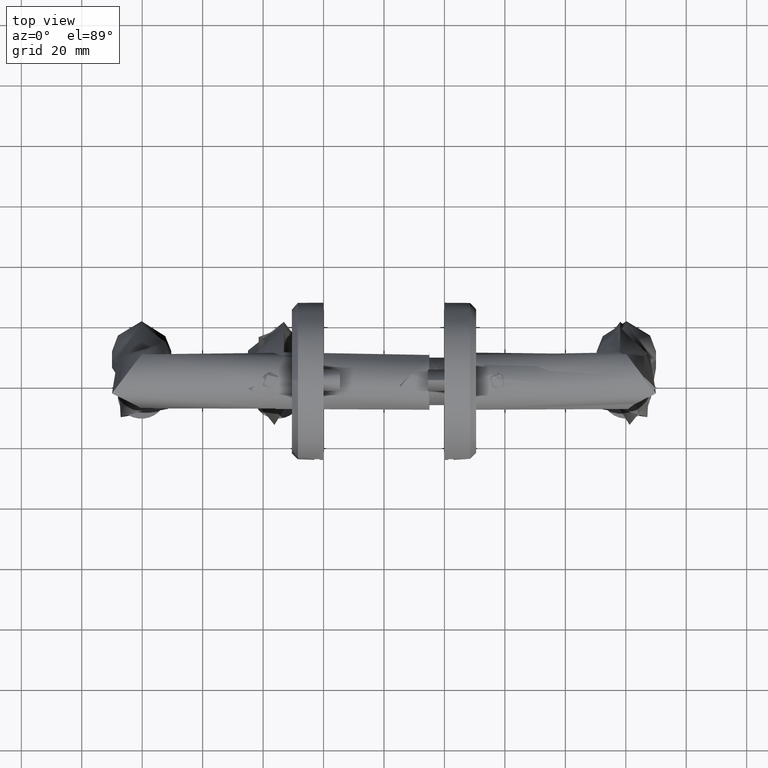
[diagram: clean part render]
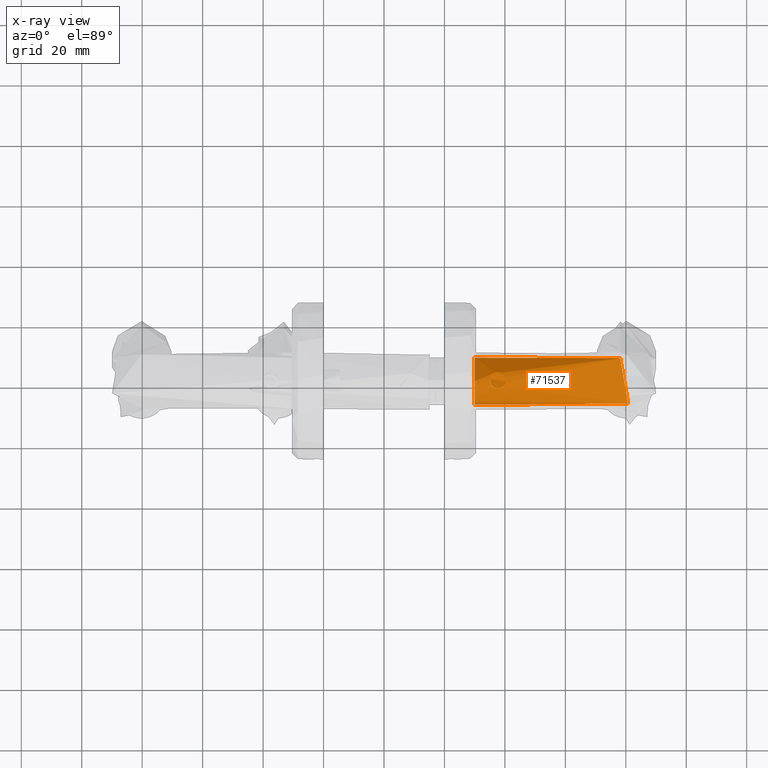
[diagram: x-ray — body ghosted, one internal face saturated and labeled with its STEP entity id]
A machine part, top view, then the same camera in x-ray: the body is ghosted and one INTERNAL B-rep face — a face not visible from any outside direction — is saturated and labeled: STEP entity #71537.
In plain terms, the highlighted cylindrical surface (bore or boss wall) has radius 7.85 mm, axis along (-1, 0, -0).
Its self-contained STEP definition (entity closure, byte-faithful):
#995 = CARTESIAN_POINT ( 'NONE',  ( -2.307024643649342500, -2.340474377015086600, -23.37873755498239700 ) ) ;
#1083 = CARTESIAN_POINT ( 'NONE',  ( -2.149607162047686900, -1.770863742671396700, -20.71658291316593300 ) ) ;
#1371 = CARTESIAN_POINT ( 'NONE',  ( -2.321304291942004800, -2.386190345381828100, -23.25697531553322200 ) ) ;
#1888 = CARTESIAN_POINT ( 'NONE',  ( -1.959279450051564500, -0.4242176323368022100, -19.91353104625180800 ) ) ;
#3172 = CARTESIAN_POINT ( 'NONE',  ( -4.054577594915955700, 5.369975993113575500, -67.82877106479482200 ) ) ;
#3452 = VERTEX_POINT ( 'NONE', #995 ) ;
#3456 = CARTESIAN_POINT ( 'NONE',  ( -8.051974791196228100, 7.652901924720223000, -63.13283780220610500 ) ) ;
#3600 = CARTESIAN_POINT ( 'NONE',  ( -1.978498366480178700, -0.6778704373157212700, -25.43125175009949500 ) ) ;
#3751 = B_SPLINE_CURVE_WITH_KNOTS ( 'NONE', 3,
 ( #52883, #6208, #67275, #80149, #26811, #45860, #25946, #73721, #86040, #72849 ),
 .UNSPECIFIED., .F., .F.,
 ( 4, 3, 3, 4 ),
 ( 4.298694126700149400E-018, 0.0002883903250794762200, 0.0006074796279142949600, 0.0009271153556158361000 ),
 .UNSPECIFIED. ) ;
#3888 = CARTESIAN_POINT ( 'NONE',  ( -1.962736948544393700, -0.4469987224957556700, -25.43616963782528700 ) ) ;
#4233 = CARTESIAN_POINT ( 'NONE',  ( -2.445878965259163300, 2.746084912034943800, -21.19067958916353700 ) ) ;
#4289 = CARTESIAN_POINT ( 'NONE',  ( -2.028692093551352400, -1.152753771912649700, -72.67351212180314200 ) ) ;
#5196 = CARTESIAN_POINT ( 'NONE',  ( -2.174620931154056500, 1.869499335052221500, -24.89816714254587300 ) ) ;
#5458 = CARTESIAN_POINT ( 'NONE',  ( -17.28740736464820300, 2.376388629234210000, -57.46060676343756100 ) ) ;
#5749 = CARTESIAN_POINT ( 'NONE',  ( -17.29109227783710500, -2.359211543666731800, -59.55787493235945400 ) ) ;
#5993 = CARTESIAN_POINT ( 'NONE',  ( -9.799999999999998900, 1.088018564132767900E-015, -15.00000000000000200 ) ) ;
#6031 = CARTESIAN_POINT ( 'NONE',  ( -2.011010811680395100, 1.018088216370678600, -25.24657244555189100 ) ) ;
#6119 = VERTEX_POINT ( 'NONE', #30591 ) ;
#6208 = CARTESIAN_POINT ( 'NONE',  ( -2.125554932997614900, 1.653546932047343900, -20.56803321826935600 ) ) ;
#6318 = CARTESIAN_POINT ( 'NONE',  ( -16.71752892145722300, 3.722330303954322100, -57.34769458327488000 ) ) ;
#6361 = CARTESIAN_POINT ( 'NONE',  ( -2.354999903756624000, 2.490492503048296100, -24.19214027286050900 ) ) ;
#6507 = CARTESIAN_POINT ( 'NONE',  ( -1.999093418396612000, 0.8942903928901343400, -20.15735863178214500 ) ) ;
#6608 = CARTESIAN_POINT ( 'NONE',  ( -11.07987061207231600, 7.758059940540145600, -60.37997186311719800 ) ) ;
#6897 = CARTESIAN_POINT ( 'NONE',  ( -14.19353157341334200, -6.559126842561303400, -64.12762868761340900 ) ) ;
#8291 = CARTESIAN_POINT ( 'NONE',  ( -1.988041213059579700, -0.7938257070122466400, -20.01138422667552100 ) ) ;
#8316 = CARTESIAN_POINT ( 'NONE',  ( -1.950000000000000400, 2.164934898019750900E-016, -15.00000000000000200 ) ) ;
#8711 = ORIENTED_EDGE ( 'NONE', *, *, #86889, .F. ) ;
#9331 = CARTESIAN_POINT ( 'NONE',  ( -12.70608980898639700, -7.292265904511809000, -65.77151898276604000 ) ) ;
#9462 = CARTESIAN_POINT ( 'NONE',  ( -1.955507084582395900, 0.3432556164179788600, -19.97474241054467100 ) ) ;
#9606 = CARTESIAN_POINT ( 'NONE',  ( -6.371596619884625700, -7.083029650756151900, -71.38062267511657000 ) ) ;
#9728 = CARTESIAN_POINT ( 'NONE',  ( -2.108630845001346900, -1.570140272583852500, -20.55457985915372300 ) ) ;
#10327 = CARTESIAN_POINT ( 'NONE',  ( -1.969326578229523300, -0.5625352118698122600, -25.44074583556041000 ) ) ;
#10971 = CARTESIAN_POINT ( 'NONE',  ( -2.488138908093577000, 2.857534168397520600, -21.48800780793981600 ) ) ;
#11030 = CARTESIAN_POINT ( 'NONE',  ( -1.947285414636475800, -0.2185626110291322700, -72.32389724989296600 ) ) ;
#11375 = B_SPLINE_CURVE_WITH_KNOTS ( 'NONE', 3,
 ( #33155, #46597, #6361, #18438, #25218, #45424, #5196, #58917, #25511, #72419 ),
 .UNSPECIFIED., .F., .F.,
 ( 4, 2, 2, 2, 4 ),
 ( 0.0000000000000000000, 0.0004851801130440871500, 0.0009703602260881743000, 0.001455540339132261500, 0.001940720452176348600 ),
 .UNSPECIFIED. ) ;
#11778 = B_SPLINE_CURVE_WITH_KNOTS ( 'NONE', 3,
 ( #39735, #18582, #79874, #6507, #45566, #73460 ),
 .UNSPECIFIED., .F., .F.,
 ( 4, 2, 4 ),
 ( 0.006179704355188942800, 0.006763281466161192400, 0.007346858577133443000 ),
 .UNSPECIFIED. ) ;
#12507 = CARTESIAN_POINT ( 'NONE',  ( -16.95825632573973300, -3.257119056501347000, -60.24384585673708200 ) ) ;
#13094 = CARTESIAN_POINT ( 'NONE',  ( -10.18369439822020600, 7.853555973788853200, -61.12953887184468000 ) ) ;
#13386 = CARTESIAN_POINT ( 'NONE',  ( -14.49088595417278600, 6.300253701403176100, -58.08642521920734900 ) ) ;
#13977 = CARTESIAN_POINT ( 'NONE',  ( -2.306888431597810200, -2.341161384303368300, -21.58542988058546500 ) ) ;
#14573 = CARTESIAN_POINT ( 'NONE',  ( -2.358356751808875300, -2.498937225907504000, -22.34981738358917600 ) ) ;
#14933 = ORIENTED_EDGE ( 'NONE', *, *, #45873, .F. ) ;
#15281 = CARTESIAN_POINT ( 'NONE',  ( -1.967245087653727500, 0.5200485390821417700, -20.05468825770648100 ) ) ;
#15544 = CARTESIAN_POINT ( 'NONE',  ( -10.39775515456358500, -7.842454226834290100, -68.08038582749826200 ) ) ;
#16207 = VERTEX_POINT ( 'NONE', #8316 ) ;
#16256 = CARTESIAN_POINT ( 'NONE',  ( -1.951012365854188900, -0.2286052664412851500, -19.89505033274851400 ) ) ;
#16699 = CARTESIAN_POINT ( 'NONE',  ( -5.117568196120877200, 6.304961474959530900, -66.42446869558726500 ) ) ;
#16836 = CARTESIAN_POINT ( 'NONE',  ( -1.962736948544393700, -0.4469987224957556700, -25.43616963782528700 ) ) ;
#17537 = CARTESIAN_POINT ( 'NONE',  ( -2.692720341788598300, -3.349525111023292200, -73.05829418933827000 ) ) ;
#17820 = CARTESIAN_POINT ( 'NONE',  ( -6.294654244171115700, 7.039065314606703300, -65.01094759224552900 ) ) ;
#18054 = ORIENTED_EDGE ( 'NONE', *, *, #56367, .T. ) ;
#18270 = ORIENTED_EDGE ( 'NONE', *, *, #71991, .T. ) ;
#18438 = CARTESIAN_POINT ( 'NONE',  ( -2.299925394133717200, 2.319366346061647800, -24.45741978179973200 ) ) ;
#18582 = CARTESIAN_POINT ( 'NONE',  ( -2.076408947706027700, 1.411414298042797900, -20.42760117646883700 ) ) ;
#18674 = CARTESIAN_POINT ( 'NONE',  ( -12.70608980898639700, -7.292265904511809000, -65.77151898276604000 ) ) ;
#18856 = FACE_BOUND ( 'NONE', #21421, .T. ) ;
#18980 = CARTESIAN_POINT ( 'NONE',  ( -16.08477808708689200, 4.712423354798306500, -57.44338928315214300 ) ) ;
#18999 = VERTEX_POINT ( 'NONE', #59763 ) ;
#19242 = DIRECTION ( 'NONE',  ( -1.627025617018336800E-030, -2.295408554306642800E-030, 1.000000000000000000 ) ) ;
#19284 = CARTESIAN_POINT ( 'NONE',  ( -16.75436019406634700, -3.668850487478451800, -60.60326857083415300 ) ) ;
#19588 = CARTESIAN_POINT ( 'NONE',  ( -15.53144932518054600, 5.371521964652743000, -57.61818366765211900 ) ) ;
#19876 = CARTESIAN_POINT ( 'NONE',  ( -8.051974791196228100, 7.652901924720223000, -63.13283780220610500 ) ) ;
#20022 = VERTEX_POINT ( 'NONE', #55224 ) ;
#20161 = CARTESIAN_POINT ( 'NONE',  ( -14.27204900732677300, 6.457068046571553300, -58.20255043812971300 ) ) ;
#20461 = EDGE_CURVE ( 'NONE', #74026, #24150, #11375, .T. ) ;
#21421 = EDGE_LOOP ( 'NONE', ( #18270, #57744, #40716, #45847, #21863, #8711, #57574, #14933, #33401, #28452 ) ) ;
#21863 = ORIENTED_EDGE ( 'NONE', *, *, #20461, .F. ) ;
#22317 = CARTESIAN_POINT ( 'NONE',  ( -8.916615017986853100, -7.804181041848036800, -69.39742751944753300 ) ) ;
#22450 = CARTESIAN_POINT ( 'NONE',  ( -2.008662983958164000, -0.9716104760861694600, -20.09123231667324600 ) ) ;
#22769 = CARTESIAN_POINT ( 'NONE',  ( -2.062963560374821100, -1.330479849078894500, -25.23522678415033800 ) ) ;
#22912 = CARTESIAN_POINT ( 'NONE',  ( -2.334566346700240200, 2.426891091124494500, -20.78795454738475400 ) ) ;
#23345 = B_SPLINE_CURVE_WITH_KNOTS ( 'NONE', 3,
 ( #3888, #10327, #3600, #62953, #43814, #50817, #22769, #63525, #30652, #36822 ),
 .UNSPECIFIED., .F., .F.,
 ( 4, 2, 2, 2, 4 ),
 ( 0.0000000000000000000, 0.0003459759895129083500, 0.0006919519790258166900, 0.001037927968538725000, 0.001383903958051633400 ),
 .UNSPECIFIED. ) ;
#23479 = CARTESIAN_POINT ( 'NONE',  ( -4.569701503070290500, 5.858539308383897500, -67.13169776668827600 ) ) ;
#24026 = CARTESIAN_POINT ( 'NONE',  ( -3.000945568177772100, -3.937715256658320200, -73.04147027436998500 ) ) ;
#24150 = VERTEX_POINT ( 'NONE', #26047 ) ;
#24543 = CARTESIAN_POINT ( 'NONE',  ( -2.509764329898562800, 2.911179121369893900, -21.91183665253603500 ) ) ;
#25218 = CARTESIAN_POINT ( 'NONE',  ( -2.269757032245750300, 2.220743646865151400, -24.57948989952342700 ) ) ;
#25511 = CARTESIAN_POINT ( 'NONE',  ( -2.084598122903205600, 1.455927018972960300, -25.12786119492903200 ) ) ;
#25846 = CARTESIAN_POINT ( 'NONE',  ( -2.278238526112707600, -2.248316277961879700, -23.94790120964718800 ) ) ;
#25946 = CARTESIAN_POINT ( 'NONE',  ( -2.245380929429780600, 2.133126976665197000, -20.69887037748287300 ) ) ;
#26047 = CARTESIAN_POINT ( 'NONE',  ( -2.058575864668055200, 1.301096556198607600, -25.16984039812272700 ) ) ;
#26055 = CARTESIAN_POINT ( 'NONE',  ( -15.72273906074695500, 5.160090260555367800, -57.55048713312865500 ) ) ;
#26344 = CARTESIAN_POINT ( 'NONE',  ( -17.08924278673064700, 2.928383779055776500, -57.38446407751998600 ) ) ;
#26503 = VERTEX_POINT ( 'NONE', #18674 ) ;
#26632 = CARTESIAN_POINT ( 'NONE',  ( -8.461623814151662900, 7.746471243382845100, -62.72018686696480200 ) ) ;
#26811 = CARTESIAN_POINT ( 'NONE',  ( -2.191640736414370400, 1.935451417261775200, -20.64131597637791100 ) ) ;
#26920 = CARTESIAN_POINT ( 'NONE',  ( -13.59691121511458800, 6.875442394498563200, -58.59193002463067000 ) ) ;
#28452 = ORIENTED_EDGE ( 'NONE', *, *, #54495, .F. ) ;
#28977 = EDGE_CURVE ( 'NONE', #26503, #20022, #40483, .T. ) ;
#29087 = CARTESIAN_POINT ( 'NONE',  ( -5.122799179504324000, -6.311437091443576000, -72.17169469570124800 ) ) ;
#29582 = EDGE_CURVE ( 'NONE', #20022, #26503, #72734, .T. ) ;
#29955 = CARTESIAN_POINT ( 'NONE',  ( -9.799999999999998900, 1.088018564132909500E-015, -92.92093876368913600 ) ) ;
#30231 = CARTESIAN_POINT ( 'NONE',  ( -3.308135361086915100, 4.420137710183516000, -68.95086907935557000 ) ) ;
#30501 = CARTESIAN_POINT ( 'NONE',  ( -5.306767735912145200, 6.441044384433395100, -66.18871227457329100 ) ) ;
#30591 = CARTESIAN_POINT ( 'NONE',  ( -2.132229668124931500, -1.681605821117567700, -24.94808126139298900 ) ) ;
#30652 = CARTESIAN_POINT ( 'NONE',  ( -2.116991813413804400, -1.612124395249273900, -25.04019693055225900 ) ) ;
#30790 = CARTESIAN_POINT ( 'NONE',  ( -2.466399647309471400, 2.848037485941410400, -70.44609861056379400 ) ) ;
#31068 = CARTESIAN_POINT ( 'NONE',  ( -2.325786411745118800, -2.422678492819255500, -72.97598177752823300 ) ) ;
#31431 = CARTESIAN_POINT ( 'NONE',  ( -2.509764329898562800, 2.911179121369893900, -21.91183665253603500 ) ) ;
#32178 = CARTESIAN_POINT ( 'NONE',  ( -2.429082317543939300, 2.701054639347119300, -21.09588056507730200 ) ) ;
#32805 = CARTESIAN_POINT ( 'NONE',  ( -15.46256675971582300, -5.454186725666301200, -62.52219142708645400 ) ) ;
#33155 = CARTESIAN_POINT ( 'NONE',  ( -2.400261449255384400, 2.620375809047948300, -23.89804528515935500 ) ) ;
#33393 = CARTESIAN_POINT ( 'NONE',  ( -8.884393553430518500, 7.808334933261255300, -62.31139932242320600 ) ) ;
#33401 = ORIENTED_EDGE ( 'NONE', *, *, #48100, .T. ) ;
#34852 = CARTESIAN_POINT ( 'NONE',  ( -2.108630845001346900, -1.570140272583852500, -20.55457985915372300 ) ) ;
#35376 = CARTESIAN_POINT ( 'NONE',  ( -1.967245087653727500, 0.5200485390821417700, -20.05468825770648100 ) ) ;
#35825 = CARTESIAN_POINT ( 'NONE',  ( -4.883167228782941300, -6.127254556478167300, -72.30750179263316100 ) ) ;
#35963 = CARTESIAN_POINT ( 'NONE',  ( -2.055600090304032300, -1.293533707904502600, -20.29353367466923800 ) ) ;
#36260 = B_SPLINE_CURVE_WITH_KNOTS ( 'NONE', 3,
 ( #74941, #42385, #35963, #22450, #8291, #1888, #16256, #48818, #9462, #35376 ),
 .UNSPECIFIED., .F., .F.,
 ( 4, 2, 2, 2, 4 ),
 ( 3.102531893291380500E-011, 0.0005725761147116805700, 0.001145152198398042300, 0.001717728282084404000, 0.002290304365770765600 ),
 .UNSPECIFIED. ) ;
#36292 = EDGE_CURVE ( 'NONE', #6119, #3452, #38266, .T. ) ;
#36822 = CARTESIAN_POINT ( 'NONE',  ( -2.132229668124931500, -1.681605821117567700, -24.94808126139298900 ) ) ;
#36958 = CARTESIAN_POINT ( 'NONE',  ( -1.961240700957616500, -0.5252813409656308400, -72.45053858711899900 ) ) ;
#37799 = CARTESIAN_POINT ( 'NONE',  ( -3.554154699469995300, -4.766637972744110400, -72.90906959794061500 ) ) ;
#37814 = CYLINDRICAL_SURFACE ( 'NONE', #67454, 7.849999999999999600 ) ;
#38028 = CARTESIAN_POINT ( 'NONE',  ( -2.363324364412151500, 2.513724519911194400, -20.84422914434092500 ) ) ;
#38087 = CARTESIAN_POINT ( 'NONE',  ( -1.953572845366527300, 0.3827229822618187200, -72.04437179397162100 ) ) ;
#38156 = CARTESIAN_POINT ( 'NONE',  ( -2.475602786113211300, 2.824602500734385600, -23.25543344431637000 ) ) ;
#38266 = B_SPLINE_CURVE_WITH_KNOTS ( 'NONE', 3,
 ( #66019, #80349, #25846, #73623 ),
 .UNSPECIFIED., .F., .F.,
 ( 4, 4 ),
 ( 0.0000000000000000000, 0.001726358061788672400 ),
 .UNSPECIFIED. ) ;
#39036 = CARTESIAN_POINT ( 'NONE',  ( -2.513448924449952900, 2.920847010260540600, -22.58694045935488900 ) ) ;
#39247 = CARTESIAN_POINT ( 'NONE',  ( -1.945826044155868400, -0.1504985390951800200, -25.42442578379512200 ) ) ;
#39280 = B_SPLINE_CURVE_WITH_KNOTS ( 'NONE', 3,
 ( #71441, #52065, #58827, #38028, #44454, #65593, #72329, #32178, #4233, #10971, #57956, #24543 ),
 .UNSPECIFIED., .F., .F.,
 ( 4, 2, 2, 2, 2, 4 ),
 ( 0.0000000000000000000, 8.060573266770202600E-005, 0.0001612114653354040500, 0.0003224229306708069600, 0.0006448458613416128500, 0.001289691722683234800 ),
 .UNSPECIFIED. ) ;
#39735 = CARTESIAN_POINT ( 'NONE',  ( -2.106869020983404900, 1.561485107100010200, -20.54762599374380400 ) ) ;
#39830 = CARTESIAN_POINT ( 'NONE',  ( -1.978628490559703600, 0.7309478220138439000, -25.30942247988721400 ) ) ;
#39833 = CARTESIAN_POINT ( 'NONE',  ( -17.56908425798800600, -1.151991926052804200, -58.78329008753075200 ) ) ;
#40111 = CARTESIAN_POINT ( 'NONE',  ( -16.97521023376528900, 3.197547086784426500, -57.36197345057630800 ) ) ;
#40483 = B_SPLINE_CURVE_WITH_KNOTS ( 'NONE', 3,
 ( #9331, #56018, #76262, #68930, #15544, #43114, #56318, #22317, #49842, #75966, #69221, #9606, #56606, #29087, #35825, #70365, #78248, #43946, #37799, #70644, #24026, #17537, #71216, #31068, #84126, #57726, #4289, #36958, #11030, #38087, #44507, #83843, #51244, #63663, #30790, #43392, #56889, #58008, #30231, #77956, #3172, #23479, #77670, #16699, #30501, #77117, #17820, #43674, #50670, #3456 ),
 .UNSPECIFIED., .F., .F.,
 ( 4, 2, 2, 2, 2, 2, 2, 2, 2, 2, 2, 2, 2, 2, 2, 2, 2, 2, 2, 2, 2, 2, 2, 2, 4 ),
 ( -1.757716445701184600E-005, 0.001982849688271170200, 0.003983276540999352100, 0.004983489967363443500, 0.005983703393727534900, 0.007984130246455686500, 0.009984557099183838000, 0.01098477052554791400, 0.01198498395191199100, 0.01298519737827606900, 0.01398541080464014500, 0.01498562423100422000, 0.01598583765736829400, 0.01698605108373237400, 0.01798626451009645000, 0.01898647793646052900, 0.01998669136282460100, 0.02198711821555277700, 0.02298733164191686700, 0.02398754506828095300, 0.02598797192100912900, 0.02698818534737323200, 0.02798839877373732900, 0.02998882562646556700, 0.03198925247919379800 ),
 .UNSPECIFIED. ) ;
#40716 = ORIENTED_EDGE ( 'NONE', *, *, #53919, .F. ) ;
#40726 = CARTESIAN_POINT ( 'NONE',  ( -2.340282009234793600, -2.444672145548949100, -21.96106875814544400 ) ) ;
#40915 = B_SPLINE_CURVE_WITH_KNOTS ( 'NONE', 3,
 ( #31431, #72745, #39036, #38156, #51895, #45752 ),
 .UNSPECIFIED., .F., .F.,
 ( 4, 2, 4 ),
 ( 0.0000000000000000000, 0.001010050018390713000, 0.002020100036781425900 ),
 .UNSPECIFIED. ) ;
#42385 = CARTESIAN_POINT ( 'NONE',  ( -2.081780096167390200, -1.438611262868663600, -20.41515031288907200 ) ) ;
#43047 = CARTESIAN_POINT ( 'NONE',  ( -2.106869020983404900, 1.561485107100010200, -20.54762599374380400 ) ) ;
#43114 = CARTESIAN_POINT ( 'NONE',  ( -9.664665637653389000, -7.852637104283350500, -68.74456373133078600 ) ) ;
#43392 = CARTESIAN_POINT ( 'NONE',  ( -2.796289396375274600, 3.555019788166049900, -69.81852395584060400 ) ) ;
#43674 = CARTESIAN_POINT ( 'NONE',  ( -7.144429831551476300, 7.401610395829613300, -64.07065627829784700 ) ) ;
#43814 = CARTESIAN_POINT ( 'NONE',  ( -2.014973484176173300, -1.013625598507612400, -25.36438510477628600 ) ) ;
#43946 = CARTESIAN_POINT ( 'NONE',  ( -3.756667071125391100, -5.020313660483355800, -72.83818748231546200 ) ) ;
#44454 = CARTESIAN_POINT ( 'NONE',  ( -2.369600820431923000, 2.532194879687821300, -20.86256088833640400 ) ) ;
#44507 = CARTESIAN_POINT ( 'NONE',  ( -1.973850580374153300, 0.6772777960960517700, -71.89146166205004800 ) ) ;
#45424 = CARTESIAN_POINT ( 'NONE',  ( -2.206761370800153900, 1.994740238359749900, -24.80108251782498000 ) ) ;
#45566 = CARTESIAN_POINT ( 'NONE',  ( -1.979930769182379800, 0.7111150009397531100, -20.09532268179604500 ) ) ;
#45665 = CARTESIAN_POINT ( 'NONE',  ( -12.91177410076764100, 7.225118236258247800, -59.02340484276995600 ) ) ;
#45752 = CARTESIAN_POINT ( 'NONE',  ( -2.400261449255384400, 2.620375809047948300, -23.89804528515935500 ) ) ;
#45847 = ORIENTED_EDGE ( 'NONE', *, *, #85198, .F. ) ;
#45860 = CARTESIAN_POINT ( 'NONE',  ( -2.217581678905518900, 2.034673977638169300, -20.66973927425991100 ) ) ;
#45873 = EDGE_CURVE ( 'NONE', #51525, #71577, #3751, .T. ) ;
#45973 = CARTESIAN_POINT ( 'NONE',  ( -17.47940886097183000, -1.646947221812280700, -59.07976964340237900 ) ) ;
#46259 = CARTESIAN_POINT ( 'NONE',  ( -9.745135504169786200, 7.861642289120316800, -61.51650135455828000 ) ) ;
#46550 = CARTESIAN_POINT ( 'NONE',  ( -1.962736948544393700, -0.4469987224957556700, -25.43616963782528700 ) ) ;
#46597 = CARTESIAN_POINT ( 'NONE',  ( -2.379946762293788000, 2.563008704777181500, -24.04820148575755600 ) ) ;
#46956 = CIRCLE ( 'NONE', #68863, 7.849999999999999600 ) ;
#47140 = CARTESIAN_POINT ( 'NONE',  ( -2.194173059930296900, -1.948193581300196000, -20.91222277528651600 ) ) ;
#48011 = CARTESIAN_POINT ( 'NONE',  ( -2.348521219183457500, -2.469454488630160600, -22.08885938429455500 ) ) ;
#48100 = EDGE_CURVE ( 'NONE', #51525, #63308, #11778, .T. ) ;
#48818 = CARTESIAN_POINT ( 'NONE',  ( -1.949170670492088100, 0.1527942661126308900, -19.92494421048508400 ) ) ;
#49842 = CARTESIAN_POINT ( 'NONE',  ( -8.661920012251416200, -7.771364917819075100, -69.61279389289467200 ) ) ;
#50006 = B_SPLINE_CURVE_WITH_KNOTS ( 'NONE', 3,
 ( #79381, #6031, #39830, #85563, #39247, #46550 ),
 .UNSPECIFIED., .F., .F.,
 ( 4, 2, 4 ),
 ( 0.0000000000000000000, 0.0008867758590936024800, 0.001773551718187205000 ),
 .UNSPECIFIED. ) ;
#50670 = CARTESIAN_POINT ( 'NONE',  ( -7.588640597440863700, 7.547070194645524300, -63.60055076339822500 ) ) ;
#50674 = DIRECTION ( 'NONE',  ( -1.000000000000000000, 1.110223024625214000E-016, 0.0000000000000000000 ) ) ;
#50817 = CARTESIAN_POINT ( 'NONE',  ( -2.045676158593980900, -1.226595478807983100, -25.28560916549214400 ) ) ;
#50846 = EDGE_CURVE ( 'NONE', #71577, #18999, #39280, .T. ) ;
#51244 = CARTESIAN_POINT ( 'NONE',  ( -2.096745881715971600, 1.536005481994944500, -71.38644500761235200 ) ) ;
#51525 = VERTEX_POINT ( 'NONE', #43047 ) ;
#51895 = CARTESIAN_POINT ( 'NONE',  ( -2.442838873860695400, 2.740611161987123200, -23.58333384895966800 ) ) ;
#52065 = CARTESIAN_POINT ( 'NONE',  ( -2.342724363240943100, 2.451986214449088000, -20.79566780304666200 ) ) ;
#52694 = CARTESIAN_POINT ( 'NONE',  ( -17.21426955147361700, -2.589951073166372600, -59.72653280503661900 ) ) ;
#52883 = CARTESIAN_POINT ( 'NONE',  ( -2.106869020983404900, 1.561485107100010200, -20.54762599374380400 ) ) ;
#52992 = CARTESIAN_POINT ( 'NONE',  ( -13.82568095040851800, 6.744393446968064000, -58.45488922322714100 ) ) ;
#53572 = CARTESIAN_POINT ( 'NONE',  ( -12.45446280147417500, 7.402918215081094800, -59.33884849065969300 ) ) ;
#53919 = EDGE_CURVE ( 'NONE', #55746, #6119, #23345, .T. ) ;
#54170 = CARTESIAN_POINT ( 'NONE',  ( -12.70608980898639700, -7.292265904511809000, -65.77151898276604000 ) ) ;
#54186 = CARTESIAN_POINT ( 'NONE',  ( -2.355886336677871300, -2.491527772518516300, -22.74361753616725300 ) ) ;
#54495 = EDGE_CURVE ( 'NONE', #64319, #63308, #36260, .T. ) ;
#55224 = CARTESIAN_POINT ( 'NONE',  ( -8.051974791196228100, 7.652901924720223000, -63.13283780220610500 ) ) ;
#55671 = FACE_OUTER_BOUND ( 'NONE', #85142, .T. ) ;
#55746 = VERTEX_POINT ( 'NONE', #16836 ) ;
#56018 = CARTESIAN_POINT ( 'NONE',  ( -12.26620287419544500, -7.467568198070703800, -66.24098986495663200 ) ) ;
#56318 = CARTESIAN_POINT ( 'NONE',  ( -9.417416033855612800, -7.844695039913017500, -68.96377542086452200 ) ) ;
#56367 = EDGE_CURVE ( 'NONE', #16207, #16207, #46956, .T. ) ;
#56606 = CARTESIAN_POINT ( 'NONE',  ( -5.857074845275233700, -6.813781910379799600, -71.72809195345485000 ) ) ;
#56889 = CARTESIAN_POINT ( 'NONE',  ( -2.916479119496830000, 3.781885824014250100, -69.60391169135198200 ) ) ;
#57169 = DIRECTION ( 'NONE',  ( -1.627025617018336800E-030, -2.295408554306642800E-030, 1.000000000000000000 ) ) ;
#57574 = ORIENTED_EDGE ( 'NONE', *, *, #50846, .F. ) ;
#57726 = CARTESIAN_POINT ( 'NONE',  ( -2.082300182962503900, -1.471440413581378100, -72.76879882719693200 ) ) ;
#57744 = ORIENTED_EDGE ( 'NONE', *, *, #36292, .F. ) ;
#57956 = CARTESIAN_POINT ( 'NONE',  ( -2.504389866381599500, 2.897720276974560700, -21.69804892749914100 ) ) ;
#58008 = CARTESIAN_POINT ( 'NONE',  ( -3.172181535450974400, 4.213969921485684700, -69.17050494032609700 ) ) ;
#58827 = CARTESIAN_POINT ( 'NONE',  ( -2.349766291439953300, 2.473251535688255800, -20.81106295949686200 ) ) ;
#58917 = CARTESIAN_POINT ( 'NONE',  ( -2.113785912049981800, 1.601107960617643900, -25.05981397532557200 ) ) ;
#59474 = CARTESIAN_POINT ( 'NONE',  ( -15.12933408711936100, 5.770698204873226300, -57.78085159089823000 ) ) ;
#59763 = CARTESIAN_POINT ( 'NONE',  ( -2.509764329898562800, 2.911179121369893900, -21.91183665253603500 ) ) ;
#59765 = CARTESIAN_POINT ( 'NONE',  ( -14.91883635003745000, 5.957778290490104200, -57.87584601242701200 ) ) ;
#60342 = CARTESIAN_POINT ( 'NONE',  ( -17.57078960515183800, 1.253319699605609300, -57.71654819608640700 ) ) ;
#60950 = CARTESIAN_POINT ( 'NONE',  ( -2.307024643649342500, -2.340474377015086600, -23.37873755498239700 ) ) ;
#61115 = ORIENTED_EDGE ( 'NONE', *, *, #28977, .F. ) ;
#62953 = CARTESIAN_POINT ( 'NONE',  ( -2.001379961639133700, -0.9038371701895279200, -25.39329711380309000 ) ) ;
#63308 = VERTEX_POINT ( 'NONE', #15281 ) ;
#63525 = CARTESIAN_POINT ( 'NONE',  ( -2.098202522168093300, -1.521257738634367800, -25.11223130084597300 ) ) ;
#63663 = CARTESIAN_POINT ( 'NONE',  ( -2.288181275981251400, 2.345810491875880200, -70.84010390846408700 ) ) ;
#64319 = VERTEX_POINT ( 'NONE', #9728 ) ;
#65593 = CARTESIAN_POINT ( 'NONE',  ( -2.387643907426304900, 2.584733770171046400, -20.92039025520826800 ) ) ;
#65933 = CARTESIAN_POINT ( 'NONE',  ( -17.65391327379911600, -0.1079493189691266600, -58.24805657168023000 ) ) ;
#66019 = CARTESIAN_POINT ( 'NONE',  ( -2.132229668124931500, -1.681605821117567700, -24.94808126139298900 ) ) ;
#66233 = CARTESIAN_POINT ( 'NONE',  ( -16.29131843729785300, -4.436933012102206100, -61.34675011428490900 ) ) ;
#66819 = CARTESIAN_POINT ( 'NONE',  ( -16.57388224144824900, 3.977950626780161000, -57.35588610384927900 ) ) ;
#67275 = CARTESIAN_POINT ( 'NONE',  ( -2.145809131754923700, 1.744855868789654900, -20.59053426834734400 ) ) ;
#67454 = AXIS2_PLACEMENT_3D ( 'NONE', #29955, #57169, #50674 ) ;
#68254 = CARTESIAN_POINT ( 'NONE',  ( -2.359853527228436700, -2.503349623483529300, -22.48265618945675100 ) ) ;
#68863 = AXIS2_PLACEMENT_3D ( 'NONE', #5993, #19242, #74083 ) ;
#68930 = CARTESIAN_POINT ( 'NONE',  ( -10.87501053148500100, -7.790598138035719900, -67.62893453306878700 ) ) ;
#69221 = CARTESIAN_POINT ( 'NONE',  ( -7.389758856078998400, -7.490927606006330600, -70.63875435472300500 ) ) ;
#70197 = CARTESIAN_POINT ( 'NONE',  ( -2.400261449255384400, 2.620375809047948300, -23.89804528515935500 ) ) ;
#70365 = CARTESIAN_POINT ( 'NONE',  ( -4.415547841894931700, -5.720678968188495100, -72.55147237760938600 ) ) ;
#70644 = CARTESIAN_POINT ( 'NONE',  ( -3.176101955154230000, -4.225564550784572900, -73.01098877262224100 ) ) ;
#71216 = CARTESIAN_POINT ( 'NONE',  ( -2.557636716404884300, -3.046541302995294600, -73.04531061954321600 ) ) ;
#71441 = CARTESIAN_POINT ( 'NONE',  ( -2.334566346700240200, 2.426891091124494500, -20.78795454738475400 ) ) ;
#71537 = ADVANCED_FACE ( 'NONE', ( #86034, #55671, #18856 ), #37814, .F. ) ;
#71577 = VERTEX_POINT ( 'NONE', #22912 ) ;
#71991 = EDGE_CURVE ( 'NONE', #64319, #3452, #76454, .T. ) ;
#72329 = CARTESIAN_POINT ( 'NONE',  ( -2.398665222154227300, 2.616036967976614700, -20.96309818971783700 ) ) ;
#72419 = CARTESIAN_POINT ( 'NONE',  ( -2.058575864668055200, 1.301096556198607600, -25.16984039812272700 ) ) ;
#72661 = CARTESIAN_POINT ( 'NONE',  ( -17.64530287653762400, -0.3769830113887984700, -58.37455980780599400 ) ) ;
#72734 = B_SPLINE_CURVE_WITH_KNOTS ( 'NONE', 3,
 ( #19876, #26632, #33393, #46259, #13094, #6608, #79382, #53572, #45665, #26920, #52992, #20161, #13386, #59765, #59474, #19588, #26055, #18980, #73827, #66819, #6318, #40111, #26344, #5458, #73265, #60342, #79969, #65933, #72661, #86152, #39833, #45973, #86737, #5749, #52694, #12507, #19284, #66233, #72965, #32805, #79689, #6897, #74412, #54170 ),
 .UNSPECIFIED., .F., .F.,
 ( 4, 2, 2, 2, 2, 2, 2, 2, 2, 2, 2, 2, 2, 2, 2, 2, 2, 2, 2, 2, 2, 4 ),
 ( -1.895420476163394400E-005, 0.001747860393538756700, 0.003514674991839147000, 0.005281489590139538300, 0.007048304188439928600, 0.007931711487590118600, 0.008815118786740308600, 0.009698526085890500300, 0.01058193338504069000, 0.01146534068419088200, 0.01234874798334107200, 0.01323215528249126200, 0.01411556258164145400, 0.01588237717994183200, 0.01676578447909202200, 0.01764919177824221200, 0.01853259907739239800, 0.01941600637654258800, 0.02118282097484295400, 0.02294963557314332000, 0.02471645017144370000, 0.02825007936804446700 ),
 .UNSPECIFIED. ) ;
#72745 = CARTESIAN_POINT ( 'NONE',  ( -2.518276104934749100, 2.932494486121584000, -22.25042169704469000 ) ) ;
#72849 = CARTESIAN_POINT ( 'NONE',  ( -2.334566346700240200, 2.426891091124494500, -20.78795454738475400 ) ) ;
#72965 = CARTESIAN_POINT ( 'NONE',  ( -16.03204686723242400, -4.793162525023700700, -61.73086018442679500 ) ) ;
#73265 = CARTESIAN_POINT ( 'NONE',  ( -17.37049490981935300, 2.096062298606215200, -57.51403646783325700 ) ) ;
#73460 = CARTESIAN_POINT ( 'NONE',  ( -1.967245087653727500, 0.5200485390821417700, -20.05468825770648100 ) ) ;
#73623 = CARTESIAN_POINT ( 'NONE',  ( -2.307024643649342500, -2.340474377015086600, -23.37873755498239700 ) ) ;
#73721 = CARTESIAN_POINT ( 'NONE',  ( -2.273228958685939100, 2.231752728998642500, -20.72805259641029700 ) ) ;
#73827 = CARTESIAN_POINT ( 'NONE',  ( -16.25612827723265900, 4.475263062438397600, -57.40389160349848700 ) ) ;
#74026 = VERTEX_POINT ( 'NONE', #70197 ) ;
#74083 = DIRECTION ( 'NONE',  ( 1.000000000000000000, -1.110223024625213700E-016, 0.0000000000000000000 ) ) ;
#74412 = CARTESIAN_POINT ( 'NONE',  ( -13.48361447469865800, -6.982409333611953700, -64.94276235137444100 ) ) ;
#74941 = CARTESIAN_POINT ( 'NONE',  ( -2.108630845001346900, -1.570140272583852500, -20.55457985915372300 ) ) ;
#75001 = CARTESIAN_POINT ( 'NONE',  ( -2.350486621066820300, -2.475482675942225700, -22.87301104727336600 ) ) ;
#75966 = CARTESIAN_POINT ( 'NONE',  ( -7.898624766064115100, -7.633781972093975000, -70.24146480621549000 ) ) ;
#76262 = CARTESIAN_POINT ( 'NONE',  ( -11.80845091385235300, -7.603630180237259700, -66.71015213876937400 ) ) ;
#76337 = EDGE_LOOP ( 'NONE', ( #18054 ) ) ;
#76454 = B_SPLINE_CURVE_WITH_KNOTS ( 'NONE', 3,
 ( #34852, #1083, #47140, #81144, #13977, #40726, #48011, #14573, #68254, #54186, #75001, #81713, #1371, #60950 ),
 .UNSPECIFIED., .F., .F.,
 ( 4, 2, 2, 2, 2, 2, 4 ),
 ( 0.009565854355699092100, 0.01034832871296231800, 0.01113080307022554600, 0.01152204024885716500, 0.01191327742748878400, 0.01230451460612040100, 0.01269575178475202000 ),
 .UNSPECIFIED. ) ;
#77117 = CARTESIAN_POINT ( 'NONE',  ( -5.888366915152741600, 6.821758012026827500, -65.48178456093614800 ) ) ;
#77670 = CARTESIAN_POINT ( 'NONE',  ( -4.748856084976835300, 6.013622198677515100, -66.89616489594742200 ) ) ;
#77956 = CARTESIAN_POINT ( 'NONE',  ( -3.738283751642103200, 5.011565782489534500, -68.28396692522854000 ) ) ;
#78248 = CARTESIAN_POINT ( 'NONE',  ( -4.186478037751078000, -5.496707497966848000, -72.65991484932902700 ) ) ;
#78457 = ORIENTED_EDGE ( 'NONE', *, *, #29582, .F. ) ;
#79381 = CARTESIAN_POINT ( 'NONE',  ( -2.058575864668055200, 1.301096556198607600, -25.16984039812272700 ) ) ;
#79382 = CARTESIAN_POINT ( 'NONE',  ( -11.53991969221038100, 7.669553463419376300, -60.01581253418167000 ) ) ;
#79689 = CARTESIAN_POINT ( 'NONE',  ( -15.15805881119703700, -5.752338388134054600, -62.92148158434693500 ) ) ;
#79874 = CARTESIAN_POINT ( 'NONE',  ( -2.047391884613118900, 1.245377939003307100, -20.32359064605367700 ) ) ;
#79969 = CARTESIAN_POINT ( 'NONE',  ( -17.63713486408690700, 0.7030250304278167200, -57.90334375905018000 ) ) ;
#80149 = CARTESIAN_POINT ( 'NONE',  ( -2.167566225956131500, 1.835335033402192500, -20.61464126642277600 ) ) ;
#80349 = CARTESIAN_POINT ( 'NONE',  ( -2.207842572616437200, -2.026384828472310100, -24.49098717363932200 ) ) ;
#81144 = CARTESIAN_POINT ( 'NONE',  ( -2.272352499509273200, -2.231274250482232700, -21.34331941977351500 ) ) ;
#81713 = CARTESIAN_POINT ( 'NONE',  ( -2.333238073598267600, -2.422959016622448800, -23.12961998383629900 ) ) ;
#83843 = CARTESIAN_POINT ( 'NONE',  ( -2.045551051690551100, 1.255325240508290900, -71.56175196666507100 ) ) ;
#84126 = CARTESIAN_POINT ( 'NONE',  ( -2.230262314312110700, -2.104067186783184600, -72.91951326870786000 ) ) ;
#85142 = EDGE_LOOP ( 'NONE', ( #61115, #78457 ) ) ;
#85198 = EDGE_CURVE ( 'NONE', #24150, #55746, #50006, .T. ) ;
#85563 = CARTESIAN_POINT ( 'NONE',  ( -1.945915118087043800, 0.1465867487105006800, -25.39883960360625500 ) ) ;
#86034 = FACE_OUTER_BOUND ( 'NONE', #76337, .T. ) ;
#86040 = CARTESIAN_POINT ( 'NONE',  ( -2.302946857123871400, 2.329625415525418100, -20.75805889740845700 ) ) ;
#86152 = CARTESIAN_POINT ( 'NONE',  ( -17.60281713955022900, -0.8982973350881622300, -58.64192490208005600 ) ) ;
#86737 = CARTESIAN_POINT ( 'NONE',  ( -17.42345329177911900, -1.888200871439036400, -59.23489167596306300 ) ) ;
#86889 = EDGE_CURVE ( 'NONE', #18999, #74026, #40915, .T. ) ;